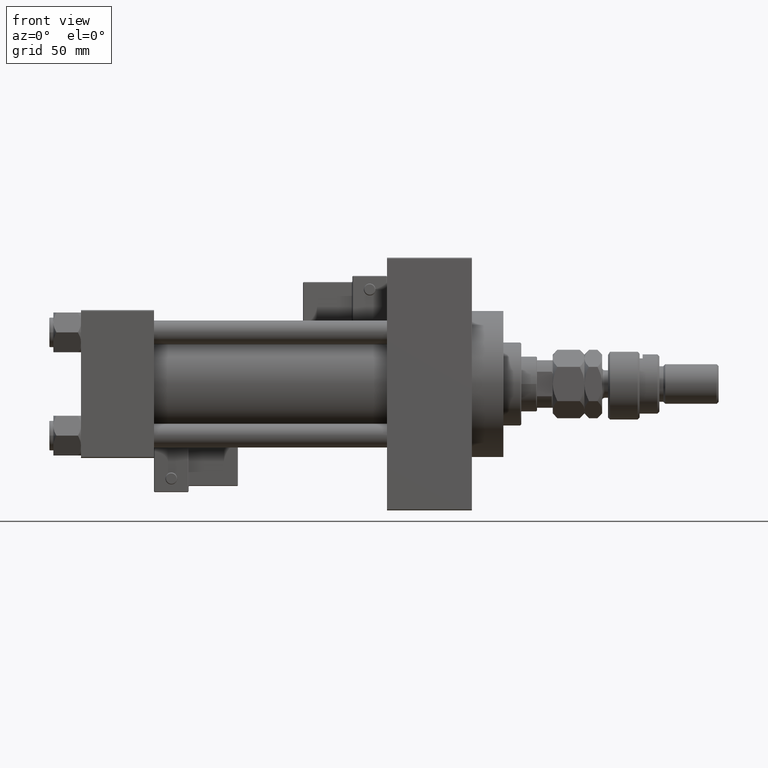
[diagram: clean part render]
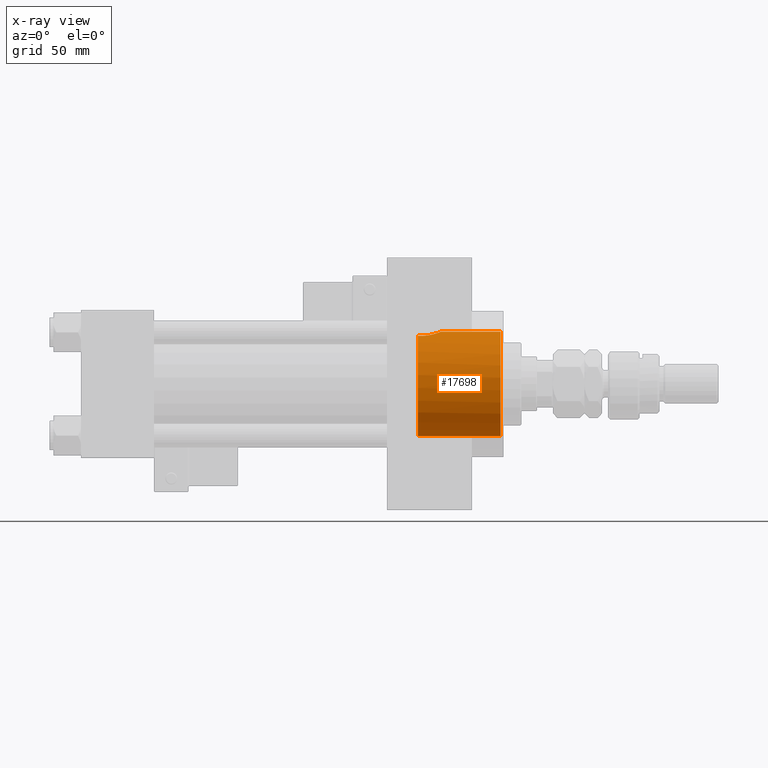
[diagram: x-ray — body ghosted, one internal face saturated and labeled with its STEP entity id]
A machine part, front view, then the same camera in x-ray: the body is ghosted and one INTERNAL B-rep face — a face not visible from any outside direction — is saturated and labeled: STEP entity #17698.
In plain terms, the highlighted cylindrical surface (partial cylindrical patch) has radius 26.5 mm, axis along (1, 0, 0).
Its self-contained STEP definition (entity closure, byte-faithful):
#384 = VERTEX_POINT ( 'NONE', #8320 ) ;
#865 = VERTEX_POINT ( 'NONE', #5462 ) ;
#1536 = B_SPLINE_CURVE_WITH_KNOTS ( 'NONE', 3,
 ( #30527, #5887, #22052, #13548, #26022, #2148, #38469, #34228, #37938, #38207, #46700, #50685, #13810, #25760, #33700, #1890, #2427, #1628, #17800, #14351, #46155, #50954, #10123, #29996, #17530, #9596 ),
 .UNSPECIFIED., .F., .F.,
 ( 4, 2, 2, 2, 2, 2, 2, 2, 2, 2, 2, 2, 4 ),
 ( 0.01781170071191069335, 0.02003745927526334042, 0.02115033855693966569, 0.02226321783861599096, 0.02337609712029231276, 0.02448897640196863804, 0.02671473496532128511, 0.02782761424699763814, 0.02894049352867399116, 0.03005337281035034419, 0.03116625209202669722, 0.03339201065537940327, 0.03561776921873211627 ),
 .UNSPECIFIED. ) ;
#1628 = CARTESIAN_POINT ( 'NONE',  ( 176.8603660912149564, -9.291949300782537335, 24.81826977973610227 ) ) ;
#1805 = CARTESIAN_POINT ( 'NONE',  ( 212.5000000000000853, 3.245314017740486554E-15, 26.50000000000000355 ) ) ;
#1890 = CARTESIAN_POINT ( 'NONE',  ( 177.8022832347253939, -8.734885810676990658, 25.02004257437575063 ) ) ;
#2148 = CARTESIAN_POINT ( 'NONE',  ( 181.8335546017134448, -3.642695553053282520, 26.25084325021122922 ) ) ;
#2153 = AXIS2_PLACEMENT_3D ( 'NONE', #50564, #15022, #31207 ) ;
#2427 = CARTESIAN_POINT ( 'NONE',  ( 177.4947120380321337, -8.931495953537138988, 24.95025484238639990 ) ) ;
#2665 = DIRECTION ( 'NONE',  ( 1.000000000000000000, -0.000000000000000000, -0.000000000000000000 ) ) ;
#3444 = ORIENTED_EDGE ( 'NONE', *, *, #12952, .F. ) ;
#5462 = CARTESIAN_POINT ( 'NONE',  ( 182.4800000000001319, 1.369086091260426415E-14, 26.50000000000006750 ) ) ;
#5887 = CARTESIAN_POINT ( 'NONE',  ( 182.4800000000000182, -0.7466733969459918852, 26.50000000000001776 ) ) ;
#7230 = DIRECTION ( 'NONE',  ( 1.000000000000000000, -0.000000000000000000, -0.000000000000000000 ) ) ;
#7633 = DIRECTION ( 'NONE',  ( 0.000000000000000000, 0.000000000000000000, -1.000000000000000000 ) ) ;
#8320 = CARTESIAN_POINT ( 'NONE',  ( 170.7400000000000375, 0.000000000000000000, -26.50000000000000355 ) ) ;
#9499 = VERTEX_POINT ( 'NONE', #23317 ) ;
#9596 = CARTESIAN_POINT ( 'NONE',  ( 170.7400000000000375, -10.40398000767014430, 24.37226292324945476 ) ) ;
#10123 = CARTESIAN_POINT ( 'NONE',  ( 173.7216423275559407, -10.36418010715236626, 24.38933169417625990 ) ) ;
#11895 = CARTESIAN_POINT ( 'NONE',  ( 170.7400000000000375, 0.000000000000000000, 0.000000000000000000 ) ) ;
#12116 = DIRECTION ( 'NONE',  ( 1.000000000000000000, 0.000000000000000000, 0.000000000000000000 ) ) ;
#12136 = EDGE_CURVE ( 'NONE', #865, #26146, #23920, .T. ) ;
#12952 = EDGE_CURVE ( 'NONE', #384, #9499, #46672, .T. ) ;
#13548 = CARTESIAN_POINT ( 'NONE',  ( 182.1654842721632974, -2.575241489874368739, 26.37710048711162614 ) ) ;
#13810 = CARTESIAN_POINT ( 'NONE',  ( 179.5076201536012377, -7.348534936426533548, 25.46581292754185100 ) ) ;
#14351 = CARTESIAN_POINT ( 'NONE',  ( 175.8600678267364401, -9.750145953289923284, 24.64162310621549423 ) ) ;
#15022 = DIRECTION ( 'NONE',  ( 1.000000000000000000, 0.000000000000000000, 0.000000000000000000 ) ) ;
#15360 = ORIENTED_EDGE ( 'NONE', *, *, #29593, .F. ) ;
#15426 = CARTESIAN_POINT ( 'NONE',  ( 170.7400000000000375, 3.245314017740486554E-15, 26.50000000000000355 ) ) ;
#17530 = CARTESIAN_POINT ( 'NONE',  ( 171.4868983507928135, -10.49443499905853905, 24.33364968799253347 ) ) ;
#17698 = ADVANCED_FACE ( 'NONE', ( #32540 ), #20363, .F. ) ;
#17800 = CARTESIAN_POINT ( 'NONE',  ( 176.5335921408433535, -9.455792512420336138, 24.75606841526505875 ) ) ;
#18037 = ORIENTED_EDGE ( 'NONE', *, *, #47158, .T. ) ;
#20363 = CYLINDRICAL_SURFACE ( 'NONE', #50217, 26.50000000000000355 ) ;
#20874 = DIRECTION ( 'NONE',  ( 1.000000000000000000, -0.000000000000000000, -0.000000000000000000 ) ) ;
#21653 = AXIS2_PLACEMENT_3D ( 'NONE', #35972, #12116, #7633 ) ;
#22052 = CARTESIAN_POINT ( 'NONE',  ( 182.4011065554137758, -1.483758503940585172, 26.46850309434598714 ) ) ;
#23317 = CARTESIAN_POINT ( 'NONE',  ( 212.5000000000000853, 0.000000000000000000, -26.50000000000000355 ) ) ;
#23920 = LINE ( 'NONE', #15426, #34001 ) ;
#24093 = DIRECTION ( 'NONE',  ( 0.000000000000000000, 0.000000000000000000, -1.000000000000000000 ) ) ;
#24816 = ORIENTED_EDGE ( 'NONE', *, *, #12136, .T. ) ;
#25409 = EDGE_CURVE ( 'NONE', #865, #31217, #1536, .T. ) ;
#25760 = CARTESIAN_POINT ( 'NONE',  ( 178.6874981071936759, -8.077221093107556982, 25.24030799844107520 ) ) ;
#26022 = CARTESIAN_POINT ( 'NONE',  ( 182.0665133812162821, -2.938253791439155549, 26.33899517628734799 ) ) ;
#26146 = VERTEX_POINT ( 'NONE', #1805 ) ;
#26163 = ORIENTED_EDGE ( 'NONE', *, *, #25409, .F. ) ;
#27613 = CIRCLE ( 'NONE', #21653, 26.50000000000000355 ) ;
#29593 = EDGE_CURVE ( 'NONE', #31217, #384, #38563, .T. ) ;
#29996 = CARTESIAN_POINT ( 'NONE',  ( 172.2451057705677329, -10.50334255171939901, 24.32972513250578928 ) ) ;
#30496 = CARTESIAN_POINT ( 'NONE',  ( 170.7400000000000375, 0.000000000000000000, -26.50000000000000355 ) ) ;
#30527 = CARTESIAN_POINT ( 'NONE',  ( 182.4800000000001319, 1.369086091260426415E-14, 26.50000000000006750 ) ) ;
#31207 = DIRECTION ( 'NONE',  ( 0.000000000000000000, 0.000000000000000000, -1.000000000000000000 ) ) ;
#31217 = VERTEX_POINT ( 'NONE', #39821 ) ;
#32540 = FACE_OUTER_BOUND ( 'NONE', #47780, .T. ) ;
#33700 = CARTESIAN_POINT ( 'NONE',  ( 178.3983008714430980, -8.308216825530738703, 25.16494175890557017 ) ) ;
#34001 = VECTOR ( 'NONE', #7230, 1000.000000000000000 ) ;
#34228 = CARTESIAN_POINT ( 'NONE',  ( 181.3963988635402700, -4.655434592126335147, 26.09007526830298929 ) ) ;
#35972 = CARTESIAN_POINT ( 'NONE',  ( 212.5000000000000853, 0.000000000000000000, 0.000000000000000000 ) ) ;
#37938 = CARTESIAN_POINT ( 'NONE',  ( 181.2276638786152319, -4.981583166679941499, 26.02957788900646108 ) ) ;
#38207 = CARTESIAN_POINT ( 'NONE',  ( 180.8553297434205831, -5.616857363200481679, 25.89992295911057596 ) ) ;
#38469 = CARTESIAN_POINT ( 'NONE',  ( 181.6993435614955672, -3.985990130492280237, 26.20070574291653998 ) ) ;
#38563 = CIRCLE ( 'NONE', #2153, 26.50000000000000355 ) ;
#39821 = CARTESIAN_POINT ( 'NONE',  ( 170.7400000000000375, -10.40398000767014430, 24.37226292324945476 ) ) ;
#45019 = VECTOR ( 'NONE', #2665, 1000.000000000000000 ) ;
#46155 = CARTESIAN_POINT ( 'NONE',  ( 175.5115735695665080, -9.881194972351261541, 24.58915736193083390 ) ) ;
#46672 = LINE ( 'NONE', #30496, #45019 ) ;
#46700 = CARTESIAN_POINT ( 'NONE',  ( 180.6508763872860754, -5.926808359427492512, 25.83050513016100425 ) ) ;
#47158 = EDGE_CURVE ( 'NONE', #26146, #9499, #27613, .T. ) ;
#47780 = EDGE_LOOP ( 'NONE', ( #26163, #24816, #18037, #3444, #15360 ) ) ;
#50217 = AXIS2_PLACEMENT_3D ( 'NONE', #11895, #20874, #24093 ) ;
#50564 = CARTESIAN_POINT ( 'NONE',  ( 170.7400000000000375, 0.000000000000000000, 0.000000000000000000 ) ) ;
#50685 = CARTESIAN_POINT ( 'NONE',  ( 179.9981355541606547, -6.811571481472467937, 25.61680511670813942 ) ) ;
#50954 = CARTESIAN_POINT ( 'NONE',  ( 174.4459359432478891, -10.21777125531389707, 24.45211332338677579 ) ) ;